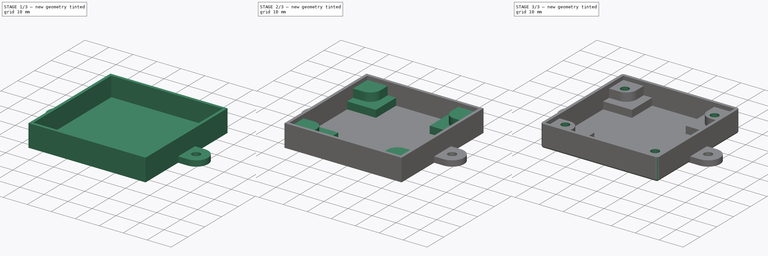
[diagram: build sequence overview — one tinted view per stage of 3, left to right]
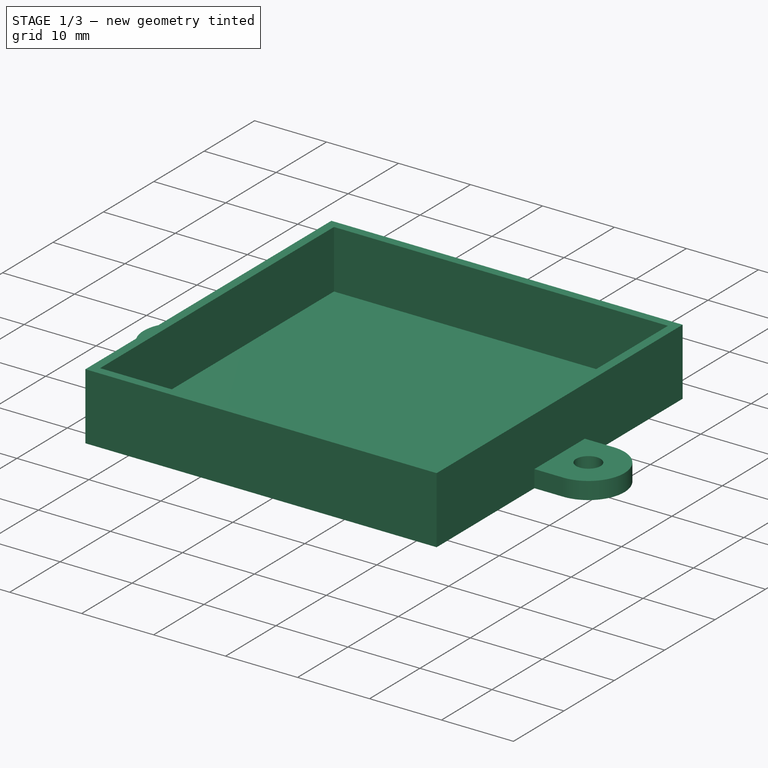
[diagram: stage 1 of 3 — iso view after this stage's code; geometry added in this stage tinted green]
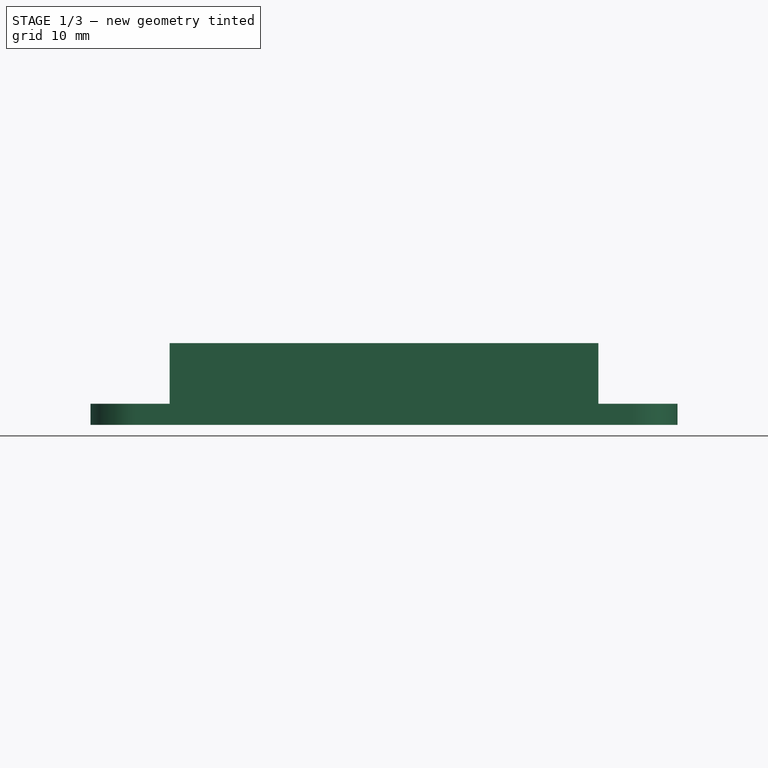
[diagram: stage 1 of 3 — front view after this stage's code; geometry added in this stage tinted green]
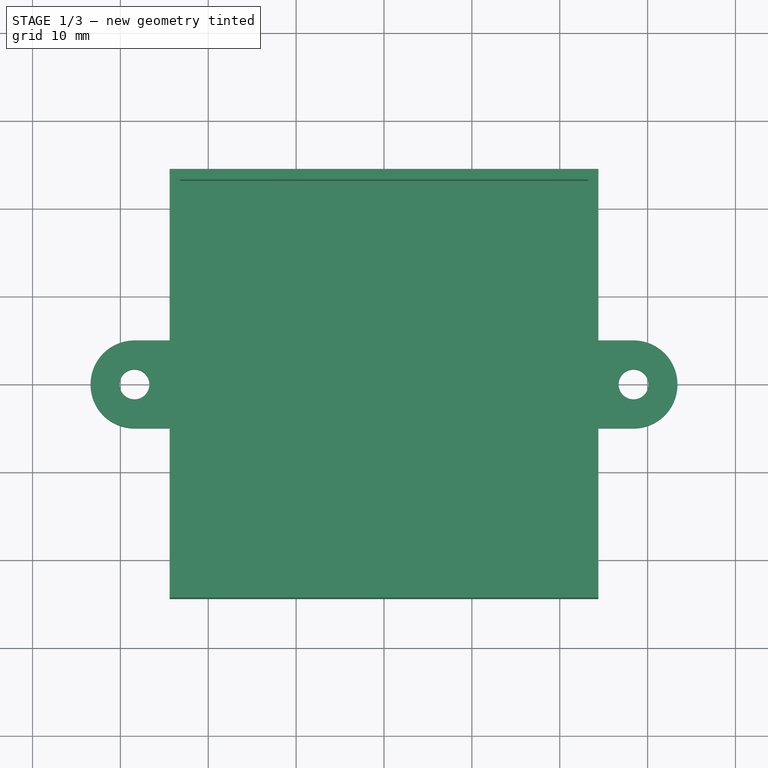
[diagram: stage 1 of 3 — top view after this stage's code; geometry added in this stage tinted green]
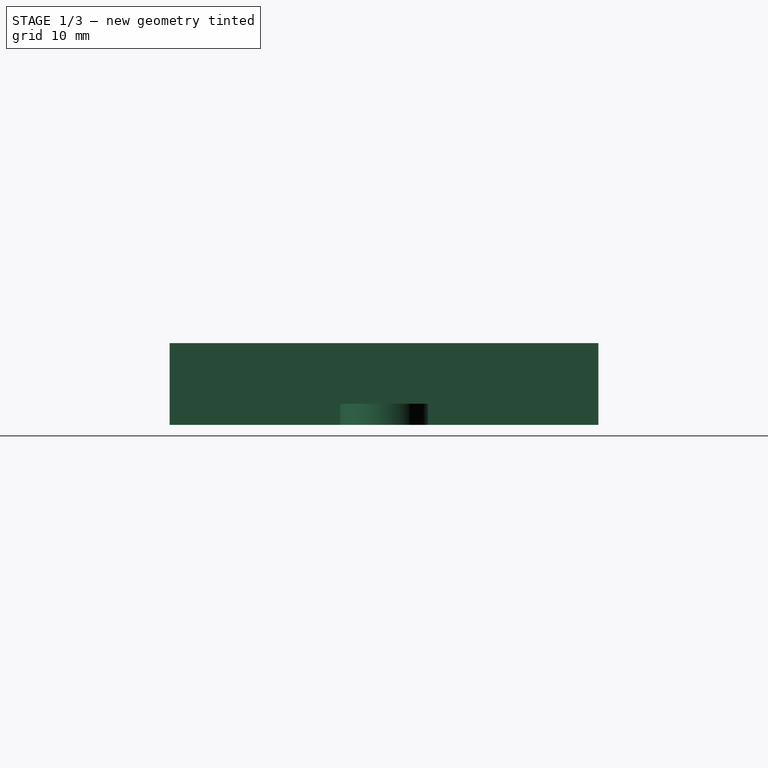
[diagram: stage 1 of 3 — right view after this stage's code; geometry added in this stage tinted green]
FCSTD DOCUMENT  (FreeCAD 0.16R)
Label: TpBox_base_l
License: All rights reserved
LicenseURL: http://en.wikipedia.org/wiki/All_rights_reserved
objects: Sketcher::SketchObject×7, PartDesign::Pad×5, PartDesign::Pocket×2, PartDesign::Fillet×1
note: 22 computed .brp shape members not serialized (recipe doc carries the construction recipe); baked Part::Feature solids carry a one-line shape summary decoded from their .brp

FEATURE [Sketcher::SketchObject] Sketch
  sketch-geometry (16):
    g0: LineSegment StartX=-24.4 StartY=24.4 StartZ=0 EndX=-24.4 EndY=5 EndZ=0
    g1: LineSegment StartX=-24.4 StartY=5 StartZ=0 EndX=-28.4 EndY=5 EndZ=0
    g2: LineSegment StartX=24.4 StartY=24.4 StartZ=0 EndX=24.4 EndY=5 EndZ=0
    g3: LineSegment StartX=24.4 StartY=5 StartZ=0 EndX=28.4 EndY=5 EndZ=0
    g4: LineSegment StartX=-28.4 StartY=-5 StartZ=0 EndX=-24.4 EndY=-5 EndZ=0
    g5: LineSegment StartX=-24.4 StartY=-5 StartZ=0 EndX=-24.4 EndY=-24.4 EndZ=0
    g6: LineSegment StartX=-24.4 StartY=-24.4 StartZ=0 EndX=24.4 EndY=-24.4 EndZ=0
    g7: LineSegment StartX=24.4 StartY=-24.4 StartZ=0 EndX=24.4 EndY=-5 EndZ=0
    g8: LineSegment StartX=24.4 StartY=-5 StartZ=0 EndX=28.4 EndY=-5 EndZ=0
    g9: LineSegment StartX=-24.4 StartY=24.4 StartZ=0 EndX=24.4 EndY=24.4 EndZ=0
    g10: LineSegment [constr] StartX=-28.4 StartY=5 StartZ=0 EndX=-28.4 EndY=-5 EndZ=0
    g11: ArcOfCircle CenterX=-28.4 CenterY=0 CenterZ=0 NormalX=0 NormalY=0 NormalZ=1 Radius=5 StartAngle=1.5708 EndAngle=4.71239
    g12: LineSegment [constr] StartX=28.4 StartY=5 StartZ=0 EndX=28.4 EndY=-5 EndZ=0
    g13: ArcOfCircle CenterX=28.4 CenterY=0 CenterZ=0 NormalX=0 NormalY=0 NormalZ=1 Radius=5 StartAngle=4.71239 EndAngle=7.85398
    g14: Circle CenterX=-28.4 CenterY=0 CenterZ=0 NormalX=0 NormalY=0 NormalZ=1 Radius=1.7
    g15: Circle CenterX=28.4 CenterY=0 CenterZ=0 NormalX=0 NormalY=0 NormalZ=1 Radius=1.7
  constraints (44):
    c: Vertical(g0)
    c: Coincident(g0,g1)
    c: Horizontal(g1)
    c: Vertical(g2)
    c: Coincident(g2,g3)
    c: Horizontal(g3)
    c: Horizontal(g4)
    c: Coincident(g4,g5)
    c: Vertical(g5)
    c: Coincident(g5,g6)
    c: Horizontal(g6)
    c: Coincident(g6,g7)
    c: Vertical(g7)
    c: Coincident(g7,g8)
    c: Horizontal(g8)
    c: Symmetric(g0,g2,g-2)
    c: Symmetric(g4,g0,g-1)
    c: Coincident(g9,g0)
    c: Coincident(g9,g2)
    c: Equal(g0,g2)
    c: Equal(g2,g7)
    c: Equal(g7,g5)
    c: Equal(g1,g4)
    c: Equal(g4,g8)
    c: Equal(g8,g3)
    c: Coincident(g10,g1)
    c: Coincident(g10,g4)
    c: Coincident(g11,g1)
    c: Coincident(g11,g4)
    c: Coincident(g12,g3)
    c: Coincident(g12,g8)
    c: Vertical(g12)
    c: PointOnObject(g13,g12)
    c: Coincident(g13,g3)
    c: Coincident(g13,g8)
    c: DistanceX(g0,g2) = 48.8
    c: PointOnObject(g11,g10)
    c: DistanceY(g4,g0) = 10
    c: DistanceX(g1,g1) = 4
    c: DistanceY(g5,g0) = 48.8
    c: Coincident(g14,g11)
    c: Coincident(g15,g13)
    c: Equal(g14,g15)
    c: Radius(g14) = 1.7
FEATURE [PartDesign::Pad] Pad  label="Base"
  Length = 1.2
  Length2 = 100
  Sketch = -> Sketch
  Type = 0
FEATURE [Sketcher::SketchObject] Sketch001
  ExternalGeometry = -> [Pad]
  Placement = pos=(0,0,1.2) rot=(0,0,1;0rad)
  Support = -> Pad [Face16]
  sketch-geometry (12):
    g0: LineSegment [constr] StartX=-28.4 StartY=5 StartZ=0 EndX=-28.4 EndY=-5 EndZ=0
    g1: LineSegment [constr] StartX=28.4 StartY=5 StartZ=0 EndX=28.4 EndY=-5 EndZ=0
    g2: LineSegment StartX=-24.4 StartY=5 StartZ=0 EndX=-28.4 EndY=5 EndZ=0
    g3: LineSegment StartX=-24.4 StartY=5 StartZ=0 EndX=-24.4 EndY=-5 EndZ=0
    g4: LineSegment StartX=24.4 StartY=5 StartZ=0 EndX=24.4 EndY=-5 EndZ=0
    g5: LineSegment StartX=24.4 StartY=-5 StartZ=0 EndX=28.4 EndY=-5 EndZ=0
    g6: LineSegment StartX=24.4 StartY=5 StartZ=0 EndX=28.4 EndY=5 EndZ=0
    g7: ArcOfCircle CenterX=-28.4 CenterY=0 CenterZ=0 NormalX=0 NormalY=0 NormalZ=1 Radius=5 StartAngle=1.5708 EndAngle=4.71239
    g8: ArcOfCircle CenterX=28.4 CenterY=0 CenterZ=0 NormalX=0 NormalY=0 NormalZ=1 Radius=5 StartAngle=4.71239 EndAngle=7.85398
    g9: LineSegment StartX=-28.4 StartY=-5 StartZ=0 EndX=-24.4 EndY=-5 EndZ=0
    g10: Circle CenterX=-28.4 CenterY=0 CenterZ=0 NormalX=0 NormalY=0 NormalZ=1 Radius=1.7
    g11: Circle CenterX=28.4 CenterY=0 CenterZ=0 NormalX=0 NormalY=0 NormalZ=1 Radius=1.7
  constraints (27):
    c: Coincident(g0,g-3)
    c: Coincident(g0,g-4)
    c: Coincident(g1,g-5)
    c: Coincident(g1,g-6)
    c: Coincident(g2,g-3)
    c: Coincident(g2,g0)
    c: Coincident(g3,g-4)
    c: Vertical(g3)
    c: Coincident(g4,g-5)
    c: Coincident(g4,g-6)
    c: Coincident(g5,g4)
    c: Coincident(g5,g1)
    c: Coincident(g6,g4)
    c: Coincident(g6,g1)
    c: PointOnObject(g7,g0)
    c: Coincident(g7,g0)
    c: Coincident(g7,g0)
    c: PointOnObject(g8,g1)
    c: Coincident(g8,g1)
    c: Coincident(g8,g1)
    c: Coincident(g2,g3)
    c: Coincident(g9,g0)
    c: Coincident(g9,g3)
    c: Coincident(g10,g7)
    c: Coincident(g11,g8)
    c: Radius(g10) = 1.7
    c: Equal(g11,g10)
FEATURE [PartDesign::Pad] Pad001  label="Attach"
  Length = 1.2
  Length2 = 100
  Sketch = -> Sketch001
  Type = 0
FEATURE [Sketcher::SketchObject] Sketch002
  ExternalGeometry = -> [Pad001]
  Placement = pos=(0,0,1.2) rot=(0,0,1;0rad)
  Support = -> Pad001 [Face5]
  sketch-geometry (8):
    g0: LineSegment StartX=-24.4 StartY=24.4 StartZ=0 EndX=24.4 EndY=24.4 EndZ=0
    g1: LineSegment StartX=24.4 StartY=24.4 StartZ=0 EndX=24.4 EndY=-24.4 EndZ=0
    g2: LineSegment StartX=24.4 StartY=-24.4 StartZ=0 EndX=-24.4 EndY=-24.4 EndZ=0
    g3: LineSegment StartX=-24.4 StartY=-24.4 StartZ=0 EndX=-24.4 EndY=24.4 EndZ=0
    g4: LineSegment StartX=-23.2 StartY=23.2 StartZ=0 EndX=23.2 EndY=23.2 EndZ=0
    g5: LineSegment StartX=23.2 StartY=23.2 StartZ=0 EndX=23.2 EndY=-23.2 EndZ=0
    g6: LineSegment StartX=23.2 StartY=-23.2 StartZ=0 EndX=-23.2 EndY=-23.2 EndZ=0
    g7: LineSegment StartX=-23.2 StartY=-23.2 StartZ=0 EndX=-23.2 EndY=23.2 EndZ=0
  constraints (22):
    c: Coincident(g0,g1)
    c: Coincident(g1,g2)
    c: Coincident(g2,g3)
    c: Coincident(g3,g0)
    c: Horizontal(g0)
    c: Horizontal(g2)
    c: Vertical(g1)
    c: Vertical(g3)
    c: Coincident(g0,g-3)
    c: Coincident(g1,g-4)
    c: Coincident(g4,g5)
    c: Coincident(g5,g6)
    c: Coincident(g6,g7)
    c: Coincident(g7,g4)
    c: Horizontal(g4)
    c: Horizontal(g6)
    c: Vertical(g5)
    c: Vertical(g7)
    c: DistanceX(g0,g4) = 1.2
    c: DistanceY(g4,g0) = 1.2
    c: DistanceX(g5,g1) = 1.2
    c: DistanceY(g1,g5) = 1.2
FEATURE [PartDesign::Pad] Pad002  label="Walls"
  Length = 8.1
  Length2 = 100
  Sketch = -> Sketch002
  Type = 0
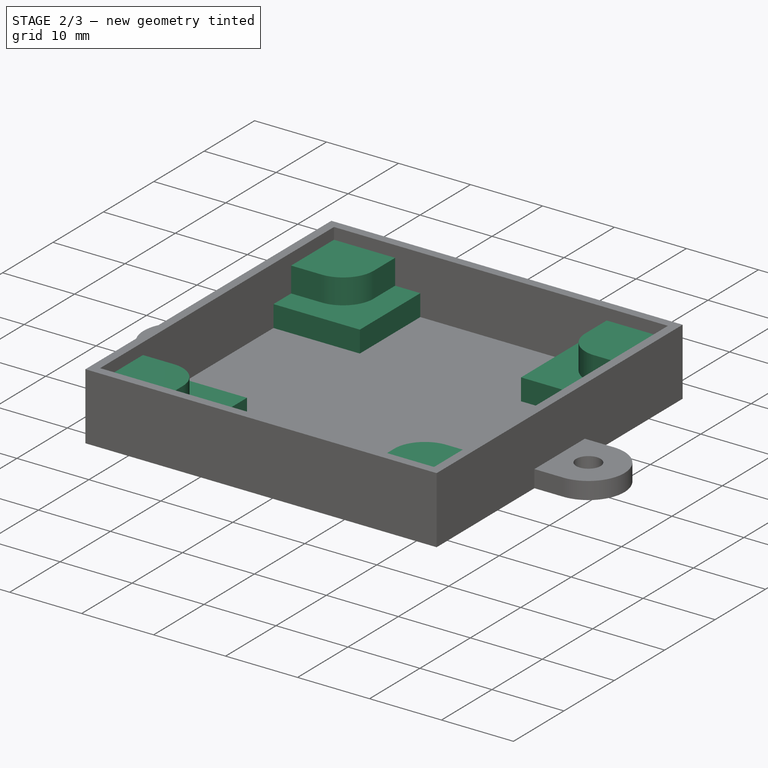
[diagram: stage 2 of 3 — iso view after this stage's code; geometry added in this stage tinted green]
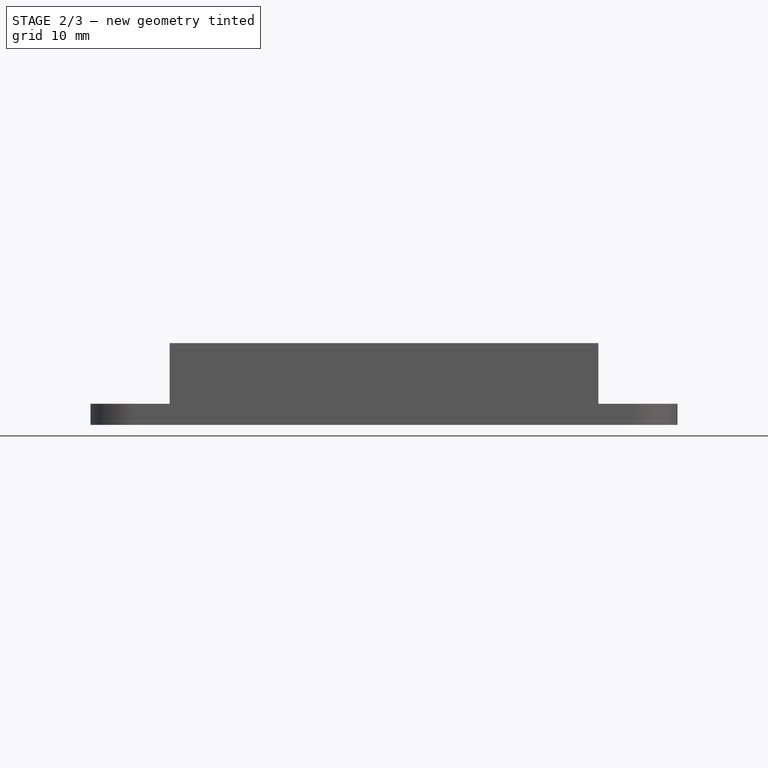
[diagram: stage 2 of 3 — front view after this stage's code; geometry added in this stage tinted green]
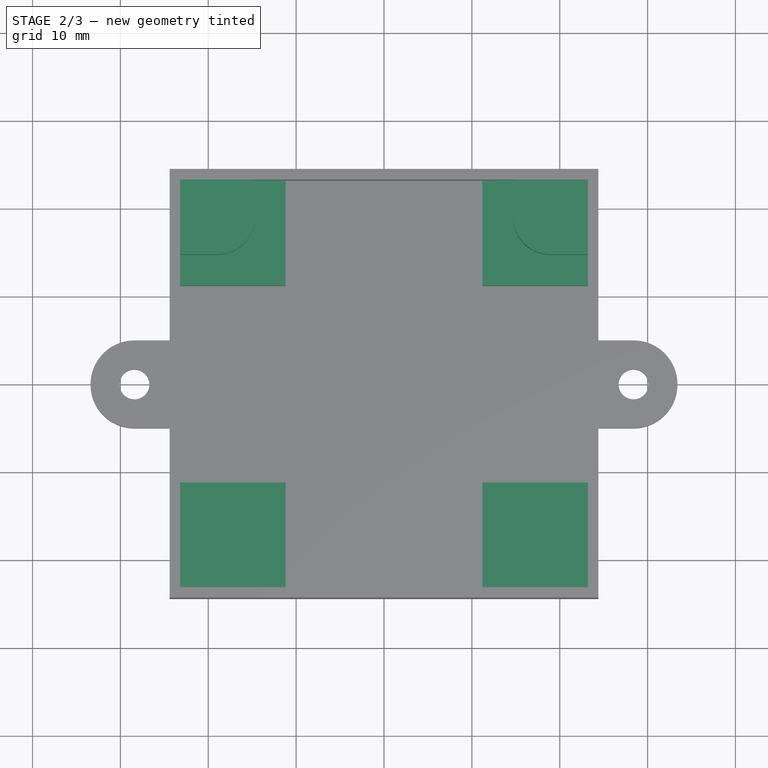
[diagram: stage 2 of 3 — top view after this stage's code; geometry added in this stage tinted green]
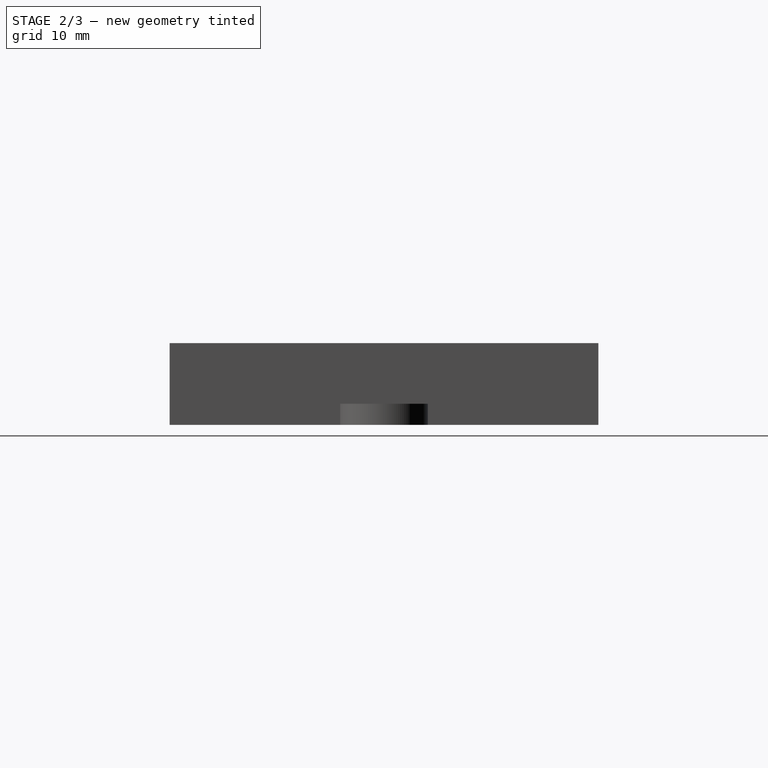
[diagram: stage 2 of 3 — right view after this stage's code; geometry added in this stage tinted green]
FEATURE [Sketcher::SketchObject] Sketch003
  ExternalGeometry = -> [Pad002]
  Placement = pos=(0,0,1.2) rot=(0,0,1;0rad)
  Support = -> Pad002 [Face35]
  sketch-geometry (16):
    g0: LineSegment StartX=-23.2 StartY=23.2 StartZ=0 EndX=-11.2 EndY=23.2 EndZ=0
    g1: LineSegment StartX=-11.2 StartY=23.2 StartZ=0 EndX=-11.2 EndY=11.2 EndZ=0
    g2: LineSegment StartX=-11.2 StartY=11.2 StartZ=0 EndX=-23.2 EndY=11.2 EndZ=0
    g3: LineSegment StartX=-23.2 StartY=11.2 StartZ=0 EndX=-23.2 EndY=23.2 EndZ=0
    g4: LineSegment StartX=23.2 StartY=23.2 StartZ=0 EndX=11.2 EndY=23.2 EndZ=0
    g5: LineSegment StartX=11.2 StartY=23.2 StartZ=0 EndX=11.2 EndY=11.2 EndZ=0
    g6: LineSegment StartX=11.2 StartY=11.2 StartZ=0 EndX=23.2 EndY=11.2 EndZ=0
    g7: LineSegment StartX=23.2 StartY=11.2 StartZ=0 EndX=23.2 EndY=23.2 EndZ=0
    g8: LineSegment StartX=-23.2 StartY=-23.2 StartZ=0 EndX=-11.2 EndY=-23.2 EndZ=0
    g9: LineSegment StartX=-11.2 StartY=-23.2 StartZ=0 EndX=-11.2 EndY=-11.2 EndZ=0
    g10: LineSegment StartX=-11.2 StartY=-11.2 StartZ=0 EndX=-23.2 EndY=-11.2 EndZ=0
    g11: LineSegment StartX=-23.2 StartY=-11.2 StartZ=0 EndX=-23.2 EndY=-23.2 EndZ=0
    g12: LineSegment StartX=23.2 StartY=-23.2 StartZ=0 EndX=11.2 EndY=-23.2 EndZ=0
    g13: LineSegment StartX=11.2 StartY=-23.2 StartZ=0 EndX=11.2 EndY=-11.2 EndZ=0
    g14: LineSegment StartX=11.2 StartY=-11.2 StartZ=0 EndX=23.2 EndY=-11.2 EndZ=0
    g15: LineSegment StartX=23.2 StartY=-11.2 StartZ=0 EndX=23.2 EndY=-23.2 EndZ=0
  constraints (52):
    c: Coincident(g0,g1)
    c: Coincident(g1,g2)
    c: Coincident(g2,g3)
    c: Coincident(g3,g0)
    c: Horizontal(g0)
    c: Horizontal(g2)
    c: Vertical(g1)
    c: Vertical(g3)
    c: Coincident(g0,g-3)
    c: Coincident(g4,g5)
    c: Coincident(g5,g6)
    c: Coincident(g6,g7)
    c: Coincident(g7,g4)
    c: Horizontal(g4)
    c: Horizontal(g6)
    c: Vertical(g5)
    c: Vertical(g7)
    c: Coincident(g4,g-3)
    c: Coincident(g8,g9)
    c: Coincident(g9,g10)
    c: Coincident(g10,g11)
    c: Coincident(g11,g8)
    c: Horizontal(g8)
    c: Horizontal(g10)
    c: Vertical(g9)
    c: Vertical(g11)
    c: Coincident(g8,g-4)
    c: Coincident(g12,g13)
    c: Coincident(g13,g14)
    c: Coincident(g14,g15)
    c: Coincident(g15,g12)
    c: Horizontal(g12)
    c: Horizontal(g14)
    c: Vertical(g13)
    c: Vertical(g15)
    c: Coincident(g12,g-4)
    c: Equal(g0,g1)
    c: Equal(g1,g2)
    c: Equal(g2,g3)
    c: Equal(g3,g4)
    c: Equal(g4,g5)
    c: Equal(g5,g6)
    c: Equal(g6,g7)
    c: Equal(g7,g8)
    c: Equal(g8,g9)
    c: Equal(g9,g10)
    c: Equal(g10,g11)
    c: Equal(g11,g12)
    c: Equal(g12,g13)
    c: Equal(g13,g14)
    c: Equal(g14,g15)
    c: DistanceY(g3,g3) = 12
FEATURE [PartDesign::Pad] Pad003  label="Rects"
  Length = 3
  Length2 = 100
  Sketch = -> Sketch003
  Type = 0
FEATURE [Sketcher::SketchObject] Sketch004
  ExternalGeometry = -> [Pad003]
  Placement = pos=(0,0,1.2) rot=(0,0,1;0rad)
  Support = -> Pad003 [Face37]
  sketch-geometry (20):
    g0: LineSegment StartX=-23.2 StartY=23.2 StartZ=0 EndX=-14.7 EndY=23.2 EndZ=0
    g1: LineSegment StartX=-14.7 StartY=23.2 StartZ=0 EndX=-14.7 EndY=18.95 EndZ=0
    g2: LineSegment StartX=-18.95 StartY=14.7 StartZ=0 EndX=-23.2 EndY=14.7 EndZ=0
    g3: LineSegment StartX=-23.2 StartY=14.7 StartZ=0 EndX=-23.2 EndY=23.2 EndZ=0
    g4: LineSegment StartX=23.2 StartY=23.2 StartZ=0 EndX=14.7 EndY=23.2 EndZ=0
    g5: LineSegment StartX=14.7 StartY=23.2 StartZ=0 EndX=14.7 EndY=18.95 EndZ=0
    g6: LineSegment StartX=18.95 StartY=14.7 StartZ=0 EndX=23.2 EndY=14.7 EndZ=0
    g7: LineSegment StartX=23.2 StartY=14.7 StartZ=0 EndX=23.2 EndY=23.2 EndZ=0
    g8: LineSegment StartX=23.2 StartY=-23.2 StartZ=0 EndX=14.7 EndY=-23.2 EndZ=0
    g9: LineSegment StartX=14.7 StartY=-23.2 StartZ=0 EndX=14.7 EndY=-18.95 EndZ=0
    g10: LineSegment StartX=18.95 StartY=-14.7 StartZ=0 EndX=23.2 EndY=-14.7 EndZ=0
    g11: LineSegment StartX=23.2 StartY=-14.7 StartZ=0 EndX=23.2 EndY=-23.2 EndZ=0
    g12: LineSegment StartX=-23.2 StartY=-23.2 StartZ=0 EndX=-14.7 EndY=-23.2 EndZ=0
    g13: LineSegment StartX=-14.7 StartY=-23.2 StartZ=0 EndX=-14.7 EndY=-18.95 EndZ=0
    g14: LineSegment StartX=-18.95 StartY=-14.7 StartZ=0 EndX=-23.2 EndY=-14.7 EndZ=0
    g15: LineSegment StartX=-23.2 StartY=-14.7 StartZ=0 EndX=-23.2 EndY=-23.2 EndZ=0
    g16: ArcOfCircle CenterX=-18.95 CenterY=18.95 CenterZ=0 NormalX=0 NormalY=0 NormalZ=1 Radius=4.25 StartAngle=4.71239 EndAngle=6.28319
    g17: ArcOfCircle CenterX=18.95 CenterY=18.95 CenterZ=0 NormalX=0 NormalY=0 NormalZ=1 Radius=4.25 StartAngle=3.14159 EndAngle=4.71239
    g18: ArcOfCircle CenterX=18.95 CenterY=-18.95 CenterZ=0 NormalX=0 NormalY=0 NormalZ=1 Radius=4.25 StartAngle=1.5708 EndAngle=3.14159
    g19: ArcOfCircle CenterX=-18.95 CenterY=-18.95 CenterZ=0 NormalX=0 NormalY=0 NormalZ=1 Radius=4.25 StartAngle=0 EndAngle=1.5708
  constraints (52):
    c: Coincident(g0,g1)
    c: Coincident(g2,g3)
    c: Coincident(g3,g0)
    c: Horizontal(g0)
    c: Horizontal(g2)
    c: Vertical(g1)
    c: Vertical(g3)
    c: Coincident(g0,g-3)
    c: Coincident(g4,g5)
    c: Coincident(g6,g7)
    c: Coincident(g7,g4)
    c: Horizontal(g4)
    c: Horizontal(g6)
    c: Vertical(g5)
    c: Vertical(g7)
    c: Coincident(g4,g-3)
    c: Coincident(g8,g9)
    c: Coincident(g10,g11)
    c: Coincident(g11,g8)
    c: Horizontal(g8)
    c: Horizontal(g10)
    c: Vertical(g9)
    c: Vertical(g11)
    c: Coincident(g8,g-4)
    c: Coincident(g12,g13)
    c: Coincident(g14,g15)
    c: Coincident(g15,g12)
    c: Horizontal(g12)
    c: Horizontal(g14)
    c: Vertical(g13)
    c: Vertical(g15)
    c: Coincident(g12,g-4)
    c: Tangent(g1,g16) = 1.5708
    c: Tangent(g2,g16) = 1.5708
    c: Tangent(g5,g17) = -1.5708
    c: Tangent(g6,g17) = -1.5708
    c: Tangent(g9,g18) = 1.5708
    c: Tangent(g10,g18) = 1.5708
    c: Tangent(g13,g19) = -1.5708
    c: Tangent(g14,g19) = -1.5708
    c: Equal(g16,g17)
    c: Equal(g17,g18)
    c: Equal(g18,g19)
    c: Radius(g16) = 4.25
    c: DistanceY(g2,g0) = 8.5
    c: Equal(g0,g3)
    c: Equal(g3,g4)
    c: Equal(g4,g7)
    c: Equal(g7,g8)
    c: Equal(g8,g11)
    c: Equal(g11,g12)
    c: Equal(g12,g15)
FEATURE [PartDesign::Pad] Pad004  label="Holder"
  Length = 6.5
  Length2 = 100
  Sketch = -> Sketch004
  Type = 0
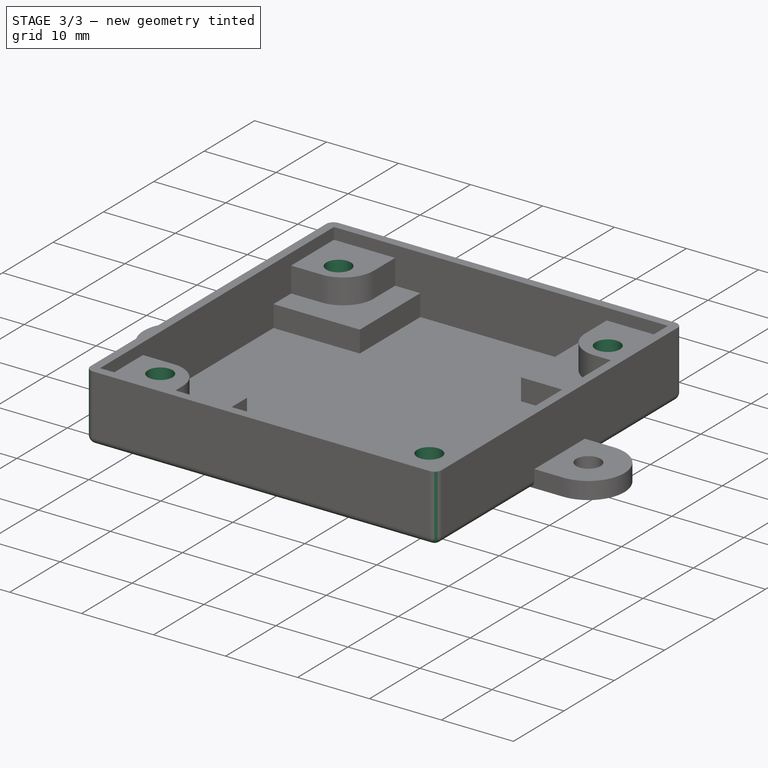
[diagram: stage 3 of 3 — iso view after this stage's code; geometry added in this stage tinted green]
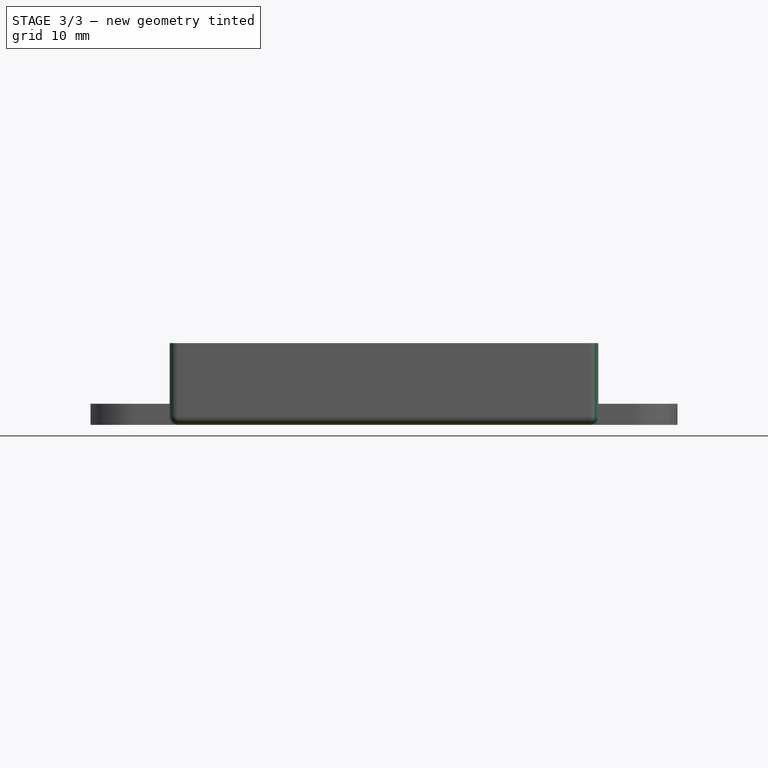
[diagram: stage 3 of 3 — front view after this stage's code; geometry added in this stage tinted green]
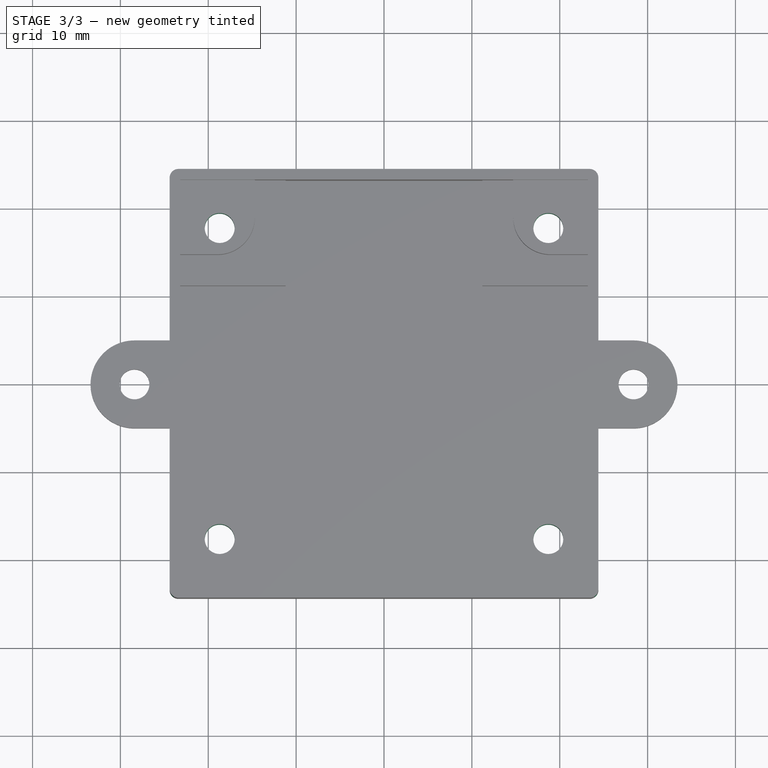
[diagram: stage 3 of 3 — top view after this stage's code; geometry added in this stage tinted green]
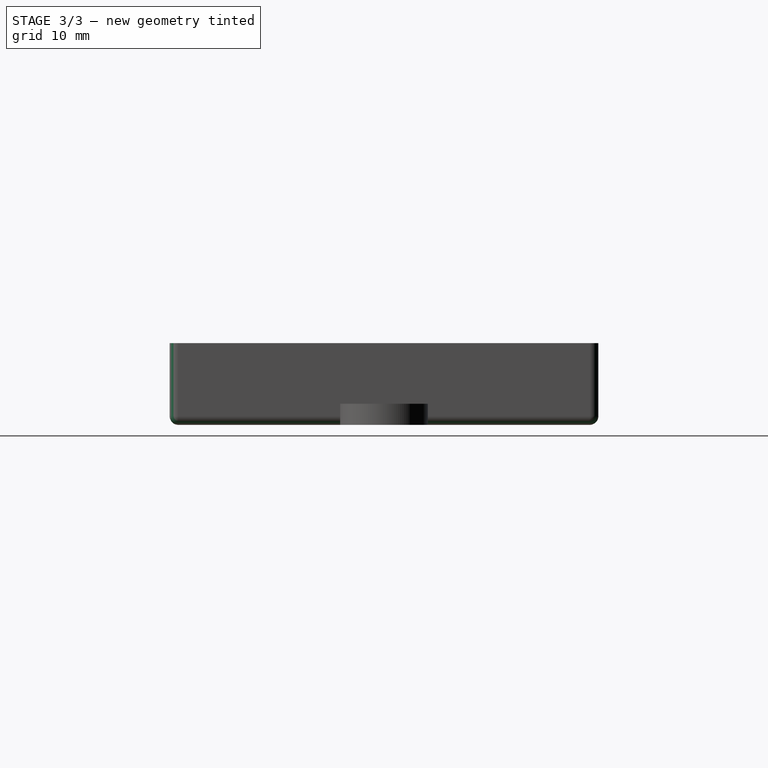
[diagram: stage 3 of 3 — right view after this stage's code; geometry added in this stage tinted green]
FEATURE [Sketcher::SketchObject] Sketch005
  ExternalGeometry = -> [Pad004]
  Placement = pos=(0,0,7.7) rot=(0,0,1;0rad)
  Support = -> Pad004 [Face42]
  sketch-geometry (4):
    g0: Circle CenterX=-18.7 CenterY=17.7 CenterZ=0 NormalX=0 NormalY=0 NormalZ=1 Radius=1.7
    g1: Circle CenterX=18.7 CenterY=17.7 CenterZ=0 NormalX=0 NormalY=0 NormalZ=1 Radius=1.7
    g2: Circle CenterX=18.7 CenterY=-17.7 CenterZ=0 NormalX=0 NormalY=0 NormalZ=1 Radius=1.7
    g3: Circle CenterX=-18.7 CenterY=-17.7 CenterZ=0 NormalX=0 NormalY=0 NormalZ=1 Radius=1.7
  constraints (9):
    c: Radius(g0) = 1.7
    c: DistanceX(g-3,g0) = 5.7
    c: DistanceY(g0,g-3) = 6.7
    c: Equal(g0,g1)
    c: Equal(g1,g2)
    c: Equal(g2,g3)
    c: Symmetric(g0,g1,g-2)
    c: Symmetric(g0,g3,g-1)
    c: Symmetric(g1,g2,g-1)
FEATURE [PartDesign::Pocket] Pocket
  Length = 5
  Sketch = -> Sketch005
  Type = 1
FEATURE [Sketcher::SketchObject] Sketch006
  ExternalGeometry = -> [Pocket]
  Placement = pos=(0,0,0) rot=(1,0,0;3.14159rad)
  Support = -> Pocket [Face1]
  sketch-geometry (4):
    g0: Circle CenterX=-18.7 CenterY=17.7 CenterZ=0 NormalX=0 NormalY=0 NormalZ=1 Radius=3
    g1: Circle CenterX=18.7 CenterY=17.7 CenterZ=0 NormalX=0 NormalY=0 NormalZ=1 Radius=3
    g2: Circle CenterX=18.7 CenterY=-17.7 CenterZ=0 NormalX=0 NormalY=0 NormalZ=1 Radius=3
    g3: Circle CenterX=-18.7 CenterY=-17.7 CenterZ=0 NormalX=0 NormalY=0 NormalZ=1 Radius=3
  constraints (9):
    c: Radius(g0) = 3
    c: DistanceX(g-3,g0) = 5.7
    c: DistanceY(g0,g-3) = 6.7
    c: Equal(g0,g1)
    c: Equal(g1,g2)
    c: Equal(g2,g3)
    c: Symmetric(g0,g1,g-2)
    c: Symmetric(g0,g3,g-1)
    c: Symmetric(g1,g2,g-1)
FEATURE [PartDesign::Pocket] Pocket001
  Length = 3
  Sketch = -> Sketch006
  Type = 0
FEATURE [PartDesign::Fillet] Fillet
  Base = -> Pocket001 [Edge39,Edge62,Edge12,Edge10,Edge19,Edge55,Edge2,Edge40,Edge66,Edge11,Edge3,Edge1,Edge57,Edge21]
  Radius = 1
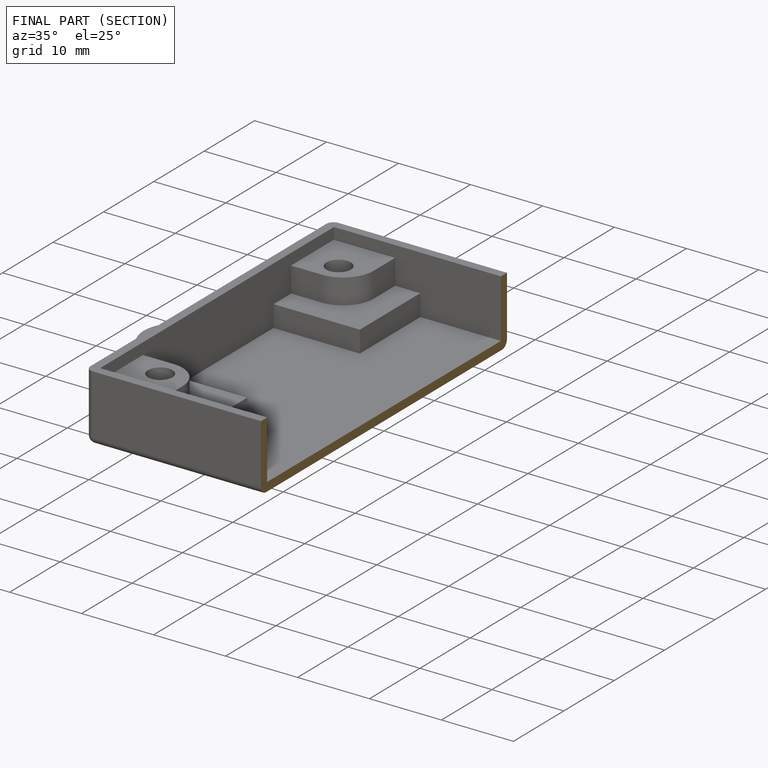
[diagram: finished part — half-section view (interior)]
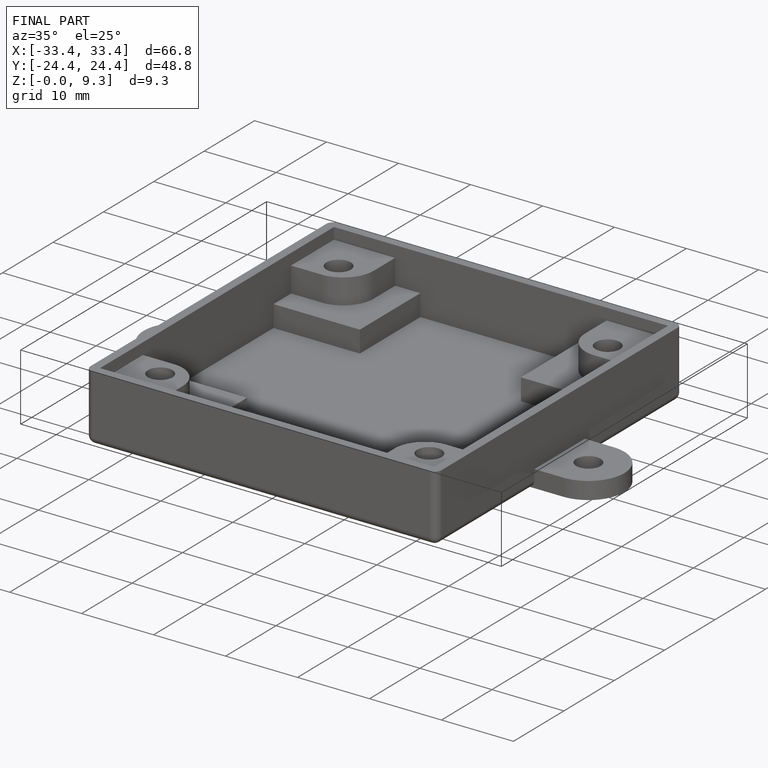
[diagram: finished part — iso view with bounding-box wireframe]
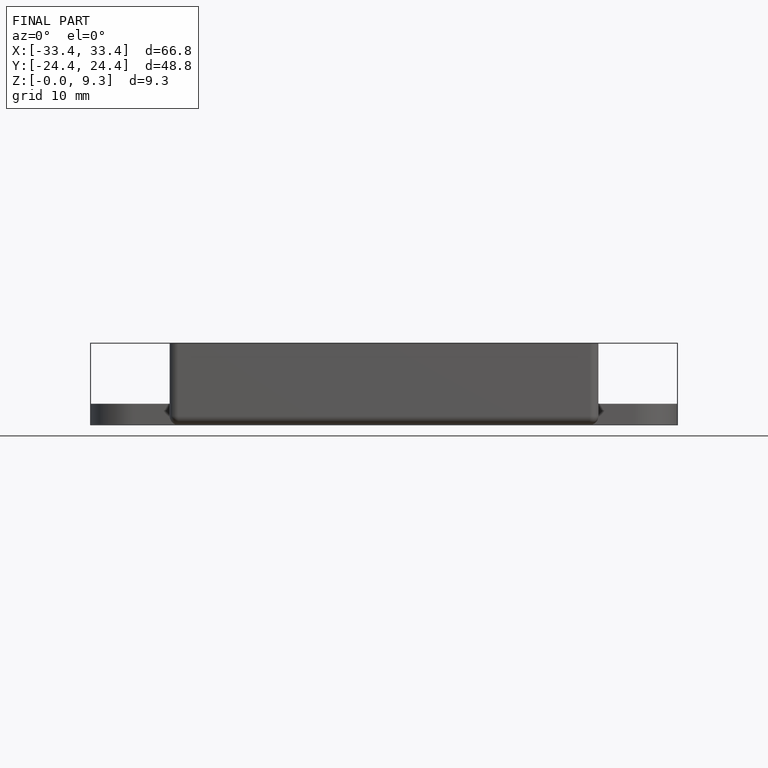
[diagram: finished part — front view with bounding-box wireframe]
